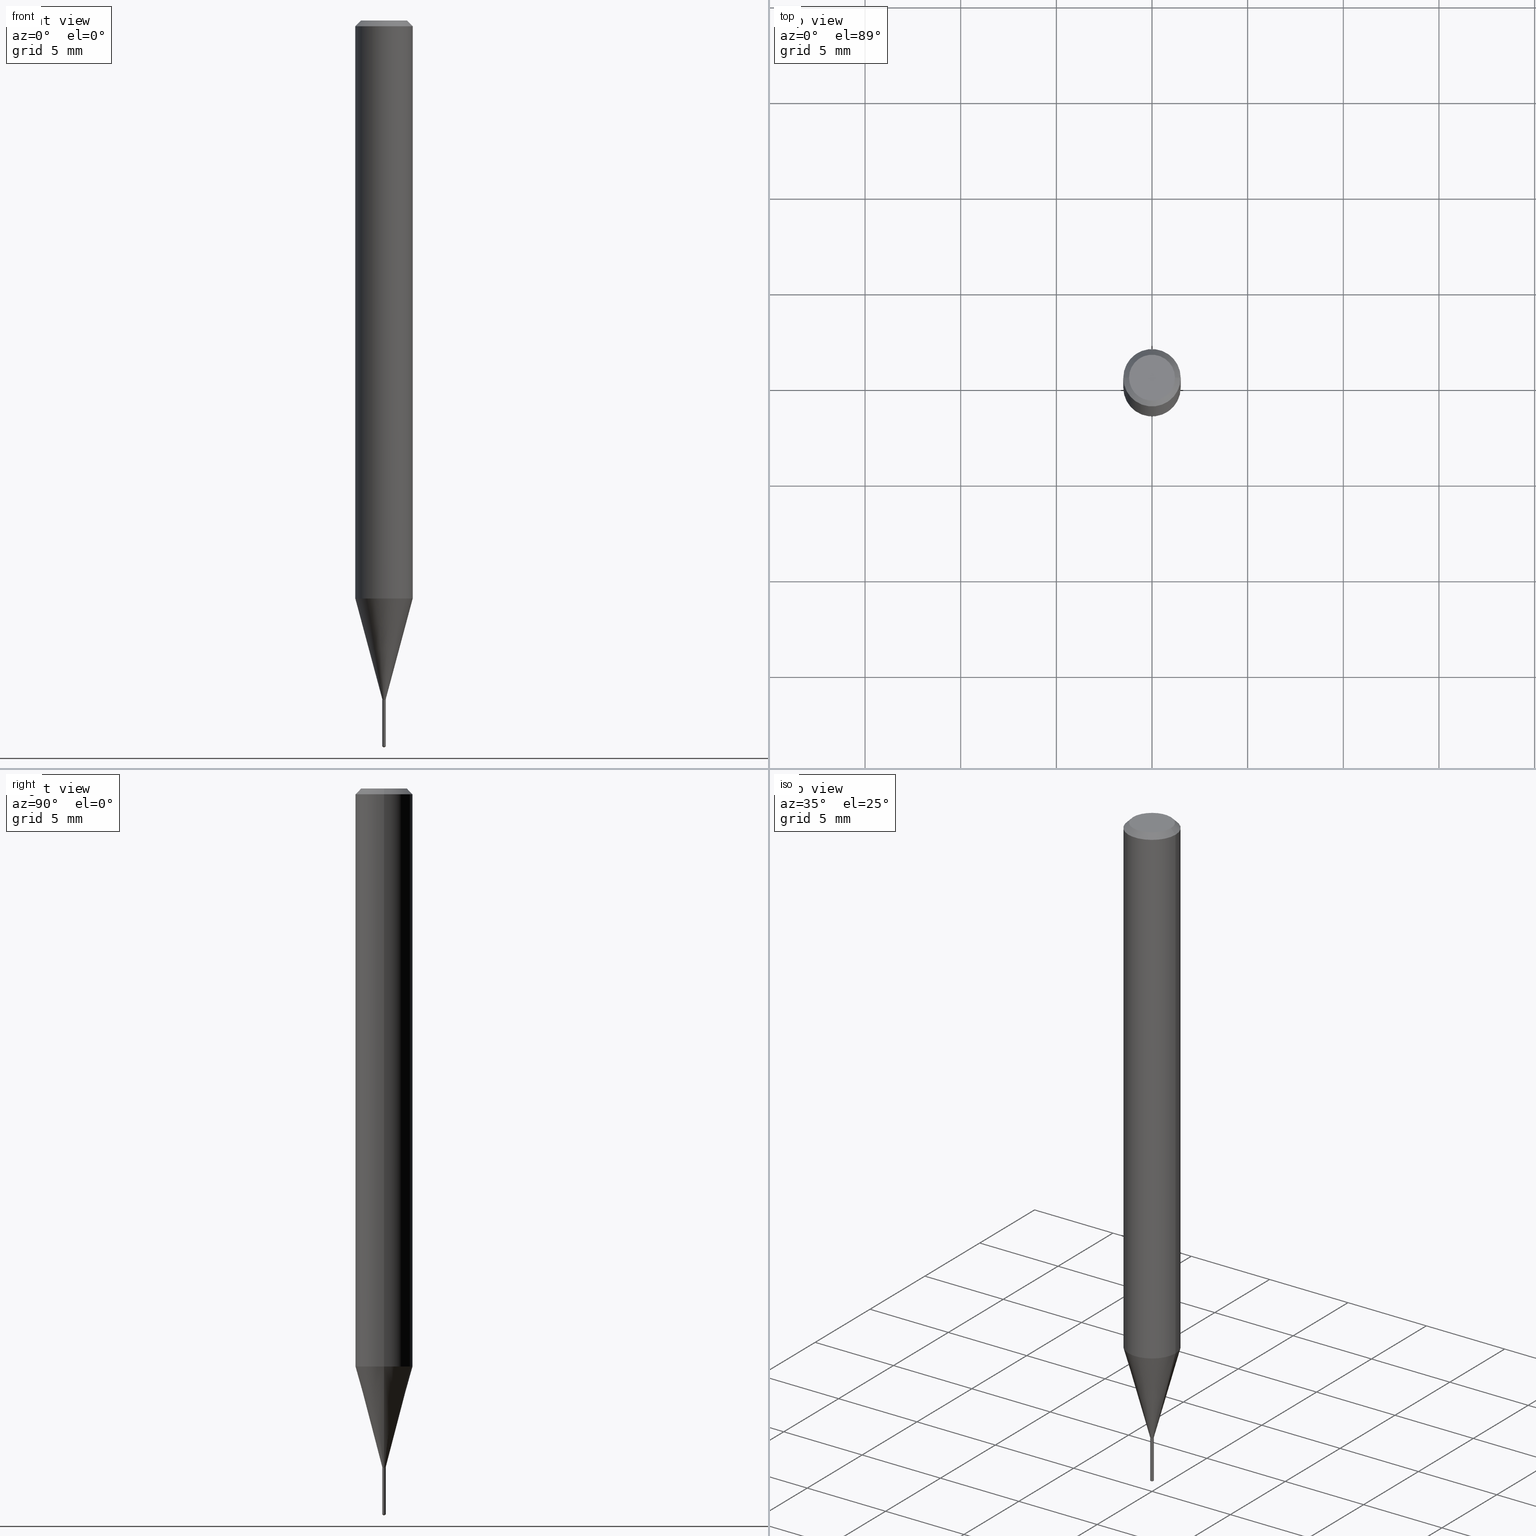
[diagram: canonical four-view strip — front | top / right | iso, engineering-drawing reading convention]
A machine part, canonical four-view strip (front | top / right | iso — engineering-drawing reading convention). The complete STEP part file that produces these views, byte-faithful:
ISO-10303-21;
HEADER;
FILE_DESCRIPTION (( 'STEP AP203' ),
    '1' );
FILE_NAME ('07737.STEP',
    '2024-04-24T01:59:03',
    ( '' ),
    ( '' ),
    'SwSTEP 2.0',
    'SolidWorks 2023',
    '' );
FILE_SCHEMA (( 'CONFIG_CONTROL_DESIGN' ));
ENDSEC;

DATA;
#1 = CARTESIAN_POINT ( 'NONE',  ( -0.05904999999999999832, 3.711095515056362547E-16, -0.01181000000000007218 ) ) ;
#2 = CARTESIAN_POINT ( 'NONE',  ( 3.415341734718161419E-29, -4.876202837828336250E-15, -1.396599999999999842 ) ) ;
#3 = CARTESIAN_POINT ( 'NONE',  ( -0.003549999999999998036, -4.852026015110506796E-15, -1.397199999999999998 ) ) ;
#4 = ORIENTED_EDGE ( 'NONE', *, *, #289, .F. ) ;
#5 = UNCERTAINTY_MEASURE_WITH_UNIT (LENGTH_MEASURE( 1.000000000000000082E-05 ), #40, 'distance_accuracy_value', 'NONE');
#6 = ADVANCED_FACE ( 'NONE', ( #409 ), #281, .T. ) ;
#7 = EDGE_LOOP ( 'NONE', ( #423, #487, #49 ) ) ;
#8 = MECHANICAL_CONTEXT ( 'NONE', #355, 'mechanical' ) ;
#9 = CIRCLE ( 'NONE', #139, 0.003050000000000000194 ) ;
#10 = VERTEX_POINT ( 'NONE', #92 ) ;
#11 = DIMENSIONAL_EXPONENTS ( 1.000000000000000000, 0.000000000000000000, 0.000000000000000000, 0.000000000000000000, 0.000000000000000000, 0.000000000000000000, 0.000000000000000000 ) ;
#12 = ORIENTED_EDGE ( 'NONE', *, *, #252, .F. ) ;
#13 = LOCAL_TIME ( 21, 59, 3.000000000000000000, #345 ) ;
#14 = AXIS2_PLACEMENT_3D ( 'NONE', #380, #110, #74 ) ;
#15 = EDGE_LOOP ( 'NONE', ( #318, #206, #53, #156 ) ) ;
#16 = EDGE_CURVE ( 'NONE', #299, #400, #211, .T. ) ;
#17 = PERSON_AND_ORGANIZATION ( #149, #213 ) ;
#18 = AXIS2_PLACEMENT_3D ( 'NONE', #351, #264, #275 ) ;
#19 = ORIENTED_EDGE ( 'NONE', *, *, #289, .T. ) ;
#20 = DIRECTION ( 'NONE',  ( -2.445468806185136597E-29, 3.491481338843145583E-15, 1.000000000000000000 ) ) ;
#21 = APPROVAL_PERSON_ORGANIZATION ( #279, #405, #228 ) ;
#22 = EDGE_CURVE ( 'NONE', #431, #468, #372, .T. ) ;
#23 = ORIENTED_EDGE ( 'NONE', *, *, #265, .T. ) ;
#24 = ORIENTED_EDGE ( 'NONE', *, *, #67, .F. ) ;
#25 = CARTESIAN_POINT ( 'NONE',  ( 3.418031750404965246E-29, -4.880043467301064347E-15, -1.397699999999999942 ) ) ;
#26 = CIRCLE ( 'NONE', #248, 0.003550000000000000204 ) ;
#27 = DIRECTION ( 'NONE',  ( -2.445468806185136597E-29, 3.491481338843145583E-15, 1.000000000000000000 ) ) ;
#28 = LINE ( 'NONE', #1, #220 ) ;
#29 = DIRECTION ( 'NONE',  ( -2.445428373332437434E-29, 3.491539240989505774E-15, 1.000000000000000000 ) ) ;
#30 = VECTOR ( 'NONE', #402, 39.37007874015748143 ) ;
#31 = CARTESIAN_POINT ( 'NONE',  ( -0.003050000000000000194, -4.858371913860381312E-15, -1.397699999999999942 ) ) ;
#32 = DIRECTION ( 'NONE',  ( 1.000000000000000000, -6.982962677686266711E-15, 0.000000000000000000 ) ) ;
#33 = EDGE_CURVE ( 'NONE', #400, #395, #375, .T. ) ;
#34 = LINE ( 'NONE', #222, #132 ) ;
#35 = ORIENTED_EDGE ( 'NONE', *, *, #365, .T. ) ;
#36 = CARTESIAN_POINT ( 'NONE',  ( 0.05905000000000014404, -4.565360374807322723E-15, -1.189471180179926924 ) ) ;
#37 = DIRECTION ( 'NONE',  ( -6.982962677686265922E-15, -1.000000000000000000, 0.000000000000000000 ) ) ;
#38 = CIRCLE ( 'NONE', #313, 0.003550000000000000204 ) ;
#39 = EDGE_LOOP ( 'NONE', ( #83, #35, #432, #356 ) ) ;
#40 =( CONVERSION_BASED_UNIT ( 'INCH', #260 ) LENGTH_UNIT ( ) NAMED_UNIT ( #11 ) );
#41 = CYLINDRICAL_SURFACE ( 'NONE', #284, 0.003550000000000000204 ) ;
#42 = EDGE_LOOP ( 'NONE', ( #165, #270, #463, #360 ) ) ;
#43 = CALENDAR_DATE ( 2024, 23, 4 ) ;
#44 = PERSON_AND_ORGANIZATION ( #149, #213 ) ;
#45 = AXIS2_PLACEMENT_3D ( 'NONE', #192, #311, #261 ) ;
#46 = LINE ( 'NONE', #205, #347 ) ;
#47 = VERTEX_POINT ( 'NONE', #171 ) ;
#48 = PERSON_AND_ORGANIZATION ( #149, #213 ) ;
#49 = ORIENTED_EDGE ( 'NONE', *, *, #332, .F. ) ;
#50 = SECURITY_CLASSIFICATION ( '', '', #243 ) ;
#51 = ORIENTED_EDGE ( 'NONE', *, *, #136, .F. ) ;
#52 = AXIS2_PLACEMENT_3D ( 'NONE', #25, #336, #99 ) ;
#53 = ORIENTED_EDGE ( 'NONE', *, *, #245, .T. ) ;
#54 = AXIS2_PLACEMENT_3D ( 'NONE', #2, #414, #419 ) ;
#55 = DIRECTION ( 'NONE',  ( 2.445468806185136597E-29, -3.491481338843145583E-15, -1.000000000000000000 ) ) ;
#56 = VERTEX_POINT ( 'NONE', #369 ) ;
#57 = CARTESIAN_POINT ( 'NONE',  ( 2.908814666986231247E-29, -4.153016428689947803E-15, -1.189471180179926924 ) ) ;
#58 = DIRECTION ( 'NONE',  ( -2.445468806185136597E-29, 3.491481338843145583E-15, 1.000000000000000000 ) ) ;
#59 = APPROVAL_ROLE ( '' ) ;
#60 = FACE_OUTER_BOUND ( 'NONE', #337, .T. ) ;
#61 = CIRCLE ( 'NONE', #120, 0.003550000000000000204 ) ;
#62 = CARTESIAN_POINT ( 'NONE',  ( 3.418031750404965246E-29, -4.880043467301064347E-15, -1.397699999999999942 ) ) ;
#63 = DIRECTION ( 'NONE',  ( 1.000000000000000000, -6.982962677686266711E-15, 4.876185090822587894E-29 ) ) ;
#64 = DIRECTION ( 'NONE',  ( -2.445468806185136597E-29, 3.491481338843145583E-15, 1.000000000000000000 ) ) ;
#65 = LINE ( 'NONE', #194, #117 ) ;
#66 = AXIS2_PLACEMENT_3D ( 'NONE', #95, #437, #338 ) ;
#67 = EDGE_CURVE ( 'NONE', #404, #237, #9, .T. ) ;
#68 = CARTESIAN_POINT ( 'NONE',  ( -0.003549999999999997602, -4.852026015110506796E-15, -1.396599999999999842 ) ) ;
#69 = DIRECTION ( 'NONE',  ( 1.000000000000000000, -6.982962677686272233E-15, 0.000000000000000000 ) ) ;
#70 = AXIS2_PLACEMENT_3D ( 'NONE', #346, #343, #309 ) ;
#71 = ORIENTED_EDGE ( 'NONE', *, *, #236, .F. ) ;
#72 = CARTESIAN_POINT ( 'NONE',  ( -0.05905000000000014404, -3.733440943223607521E-15, -1.189471180179926924 ) ) ;
#73 = CONICAL_SURFACE ( 'NONE', #334, 0.003050000000000000194, 0.7853981633975469778 ) ;
#74 = DIRECTION ( 'NONE',  ( -6.982962677686265922E-15, -1.000000000000000000, 0.000000000000000000 ) ) ;
#75 = DIRECTION ( 'NONE',  ( -2.445428373332437434E-29, 3.491539240989505774E-15, 1.000000000000000000 ) ) ;
#76 = ORIENTED_EDGE ( 'NONE', *, *, #238, .T. ) ;
#77 = APPROVAL_STATUS ( 'not_yet_approved' ) ;
#78 = EDGE_LOOP ( 'NONE', ( #212, #393, #4, #458 ) ) ;
#79 = AXIS2_PLACEMENT_3D ( 'NONE', #448, #148, #63 ) ;
#80 = DIRECTION ( 'NONE',  ( 0.000000000000000000, 0.000000000000000000, 1.000000000000000000 ) ) ;
#81 = FACE_OUTER_BOUND ( 'NONE', #239, .T. ) ;
#82 = ORIENTED_EDGE ( 'NONE', *, *, #67, .T. ) ;
#83 = ORIENTED_EDGE ( 'NONE', *, *, #105, .T. ) ;
#84 = DATE_AND_TIME ( #209, #411 ) ;
#85 = APPROVAL ( #188, 'UNSPECIFIED' ) ;
#86 = EDGE_CURVE ( 'NONE', #395, #431, #424, .T. ) ;
#87 = VERTEX_POINT ( 'NONE', #297 ) ;
#88 = EDGE_LOOP ( 'NONE', ( #397, #82, #320, #477 ) ) ;
#89 = AXIS2_PLACEMENT_3D ( 'NONE', #381, #178, #221 ) ;
#90 =( NAMED_UNIT ( * ) SI_UNIT ( $, .STERADIAN. ) SOLID_ANGLE_UNIT ( ) );
#91 = DIRECTION ( 'NONE',  ( 1.000000000000000000, -6.982962677686266711E-15, 4.876176775795936353E-29 ) ) ;
#92 = CARTESIAN_POINT ( 'NONE',  ( 2.522426711952009525E-17, 0.003549999999994785192, -1.493966944802452179 ) ) ;
#93 = FACE_OUTER_BOUND ( 'NONE', #363, .T. ) ;
#94 = CC_DESIGN_APPROVAL ( #454, ( #361 ) ) ;
#95 = CARTESIAN_POINT ( 'NONE',  ( 0.000000000000000000, 0.000000000000000000, 0.000000000000000000 ) ) ;
#96 = EDGE_CURVE ( 'NONE', #325, #168, #295, .T. ) ;
#97 = CYLINDRICAL_SURFACE ( 'NONE', #155, 0.003549999999999997602 ) ;
#98 = AXIS2_PLACEMENT_3D ( 'NONE', #145, #224, #32 ) ;
#99 = DIRECTION ( 'NONE',  ( 1.000000000000000000, -6.982962677686126293E-15, 0.000000000000000000 ) ) ;
#100 = DIRECTION ( 'NONE',  ( 2.438088387897960049E-29, -3.491481338843145188E-15, -1.000000000000000000 ) ) ;
#101 = DIRECTION ( 'NONE',  ( -2.445468806185136597E-29, 3.491481338843145583E-15, 1.000000000000000000 ) ) ;
#102 = LOCAL_TIME ( 21, 59, 3.000000000000000000, #465 ) ;
#103 = DIRECTION ( 'NONE',  ( -0.7071067811866172947, 7.493145998870606596E-15, 0.7071067811864777397 ) ) ;
#104 = DIRECTION ( 'NONE',  ( -2.445468806185136597E-29, 3.491481338843145583E-15, 1.000000000000000000 ) ) ;
#105 = EDGE_CURVE ( 'NONE', #237, #404, #215, .T. ) ;
#106 = FACE_OUTER_BOUND ( 'NONE', #173, .T. ) ;
#107 = CARTESIAN_POINT ( 'NONE',  ( 2.522426711951773483E-17, 0.003549999999995119993, -1.397699999999999942 ) ) ;
#108 = APPLICATION_CONTEXT ( 'configuration controlled 3d designs of mechanical parts and assemblies' ) ;
#109 = CARTESIAN_POINT ( 'NONE',  ( 3.658605389342659504E-29, -5.223691858444399374E-15, -1.496099999999999985 ) ) ;
#110 = DIRECTION ( 'NONE',  ( -2.445428373332437434E-29, 3.491539240989505774E-15, 1.000000000000000000 ) ) ;
#111 = AXIS2_PLACEMENT_3D ( 'NONE', #150, #100, #413 ) ;
#112 = CARTESIAN_POINT ( 'NONE',  ( -2.478951750575206444E-17, -0.003550000000004879981, -1.397699999999999942 ) ) ;
#113 = PERSON_AND_ORGANIZATION ( #149, #213 ) ;
#114 = ORIENTED_EDGE ( 'NONE', *, *, #367, .T. ) ;
#115 = AXIS2_PLACEMENT_3D ( 'NONE', #473, #292, #440 ) ;
#116 = VERTEX_POINT ( 'NONE', #435 ) ;
#117 = VECTOR ( 'NONE', #481, 39.37007874015748143 ) ;
#118 = MANIFOLD_SOLID_BREP ( 'Body-Move/Copy2[1]', #373 ) ;
#119 = FACE_OUTER_BOUND ( 'NONE', #490, .T. ) ;
#120 = AXIS2_PLACEMENT_3D ( 'NONE', #62, #479, #273 ) ;
#121 = ADVANCED_FACE ( 'NONE', ( #60 ), #183, .T. ) ;
#122 = CALENDAR_DATE ( 2024, 23, 4 ) ;
#123 = ORIENTED_EDGE ( 'NONE', *, *, #22, .T. ) ;
#124 = ADVANCED_FACE ( 'NONE', ( #251 ), #133, .T. ) ;
#125 = MANIFOLD_SOLID_BREP ( 'Body-Move/Copy2[2]', #256 ) ;
#126 = ORIENTED_EDGE ( 'NONE', *, *, #96, .F. ) ;
#127 = CIRCLE ( 'NONE', #317, 0.05904999999999999832 ) ;
#128 = ORIENTED_EDGE ( 'NONE', *, *, #141, .F. ) ;
#129 = CARTESIAN_POINT ( 'NONE',  ( 3.418031750404965246E-29, -4.880043467301064347E-15, -1.397699999999999942 ) ) ;
#130 = ADVANCED_FACE ( 'NONE', ( #93 ), #216, .T. ) ;
#131 = DIRECTION ( 'NONE',  ( 1.000000000000000000, -6.982962677686126293E-15, 0.000000000000000000 ) ) ;
#132 = VECTOR ( 'NONE', #489, 39.37007874015748143 ) ;
#133 = CYLINDRICAL_SURFACE ( 'NONE', #66, 0.05905000000000006771 ) ;
#134 = AXIS2_PLACEMENT_3D ( 'NONE', #269, #104, #312 ) ;
#135 = CARTESIAN_POINT ( 'NONE',  ( -0.003549999999999997602, 2.522426711948353956E-17, -1.746221957040490115E-31 ) ) ;
#136 = EDGE_CURVE ( 'NONE', #116, #56, #34, .T. ) ;
#137 = AXIS2_PLACEMENT_3D ( 'NONE', #227, #27, #179 ) ;
#138 = EDGE_LOOP ( 'NONE', ( #285, #335, #249, #244 ) ) ;
#139 = AXIS2_PLACEMENT_3D ( 'NONE', #129, #174, #131 ) ;
#140 = FACE_OUTER_BOUND ( 'NONE', #78, .T. ) ;
#141 = EDGE_CURVE ( 'NONE', #168, #468, #304, .T. ) ;
#142 = ADVANCED_FACE ( 'NONE', ( #277 ), #153, .T. ) ;
#143 = DIRECTION ( 'NONE',  ( 0.2588190451025211836, 1.565188264969622559E-15, 0.9659258262890679791 ) ) ;
#144 = DATE_TIME_ROLE ( 'classification_date' ) ;
#145 = CARTESIAN_POINT ( 'NONE',  ( 2.888098660104664204E-31, -4.123439461173780263E-17, -0.01181000000000007218 ) ) ;
#146 = VECTOR ( 'NONE', #391, 39.37007874015748854 ) ;
#147 = CARTESIAN_POINT ( 'NONE',  ( 3.415341734718161419E-29, -4.876202837828336250E-15, -1.396599999999999842 ) ) ;
#148 = DIRECTION ( 'NONE',  ( -2.445468806185136597E-29, 3.491481338843145583E-15, 1.000000000000000000 ) ) ;
#149 = PERSON ( 'UNSPECIFIED', 'UNSPECIFIED', 'UNSPECIFIED', ('UNSPECIFIED'), ('UNSPECIFIED'), ('UNSPECIFIED') ) ;
#150 = CARTESIAN_POINT ( 'NONE',  ( 4.132873053354867254E-48, -5.900647395337818946E-34, -1.690012582823346072E-19 ) ) ;
#151 = CARTESIAN_POINT ( 'NONE',  ( 3.418031750404965246E-29, -4.880043467301064347E-15, -1.397699999999999942 ) ) ;
#152 = CARTESIAN_POINT ( 'NONE',  ( 0.000000000000000000, 0.000000000000000000, 0.000000000000000000 ) ) ;
#153 = CYLINDRICAL_SURFACE ( 'NONE', #461, 0.003550000000000000204 ) ;
#154 = APPLICATION_PROTOCOL_DEFINITION ( 'international standard', 'config_control_design', 1994, #108 ) ;
#155 = AXIS2_PLACEMENT_3D ( 'NONE', #415, #58, #344 ) ;
#156 = ORIENTED_EDGE ( 'NONE', *, *, #265, .F. ) ;
#157 = DATE_AND_TIME ( #234, #254 ) ;
#158 = ORIENTED_EDGE ( 'NONE', *, *, #333, .F. ) ;
#159 = VECTOR ( 'NONE', #470, 39.37007874015748854 ) ;
#160 = DATE_TIME_ROLE ( 'creation_date' ) ;
#161 = CC_DESIGN_DATE_AND_TIME_ASSIGNMENT ( #84, #160, ( #288 ) ) ;
#162 = CARTESIAN_POINT ( 'NONE',  ( -0.04724000000000000421, 3.504923541997677355E-16, -3.380025165670481712E-19 ) ) ;
#163 = ORIENTED_EDGE ( 'NONE', *, *, #202, .T. ) ;
#164 = CARTESIAN_POINT ( 'NONE',  ( 3.418031750404965246E-29, -4.880043467301064347E-15, -1.397699999999999942 ) ) ;
#165 = ORIENTED_EDGE ( 'NONE', *, *, #238, .F. ) ;
#166 = PERSON_AND_ORGANIZATION ( #149, #213 ) ;
#167 = DIRECTION ( 'NONE',  ( -6.982962677686265922E-15, -1.000000000000000000, 0.000000000000000000 ) ) ;
#168 = VERTEX_POINT ( 'NONE', #450 ) ;
#169 = EDGE_CURVE ( 'NONE', #87, #468, #127, .T. ) ;
#170 = PERSON_AND_ORGANIZATION ( #149, #213 ) ;
#171 = CARTESIAN_POINT ( 'NONE',  ( -2.478951750574971635E-17, -0.003550000000005217385, -1.493966944802452179 ) ) ;
#172 = PRODUCT_DEFINITION_SHAPE ( 'NONE', 'NONE',  #288 ) ;
#173 = EDGE_LOOP ( 'NONE', ( #158, #250, #302 ) ) ;
#174 = DIRECTION ( 'NONE',  ( -2.445468806185136597E-29, 3.491481338843145583E-15, 1.000000000000000000 ) ) ;
#175 = CC_DESIGN_DATE_AND_TIME_ASSIGNMENT ( #428, #144, ( #50 ) ) ;
#176 = CARTESIAN_POINT ( 'NONE',  ( 0.000000000000000000, 0.000000000000000000, 0.000000000000000000 ) ) ;
#177 = DIRECTION ( 'NONE',  ( -1.000000000000000000, 6.982962677686266711E-15, 0.000000000000000000 ) ) ;
#178 = DIRECTION ( 'NONE',  ( -2.438088387897960049E-29, 3.491481338843145188E-15, 1.000000000000000000 ) ) ;
#179 = DIRECTION ( 'NONE',  ( 1.000000000000000000, -6.982962677686266711E-15, 4.876176775795935232E-29 ) ) ;
#180 = CC_DESIGN_PERSON_AND_ORGANIZATION_ASSIGNMENT ( #113, #392, ( #50 ) ) ;
#181 = ADVANCED_FACE ( 'NONE', ( #185 ), #267, .T. ) ;
#182 = PLANE ( 'NONE',  #89 ) ;
#183 = CONICAL_SURFACE ( 'NONE', #287, 0.05904999999999999832, 0.7853981633974452814 ) ;
#184 = DATE_AND_TIME ( #340, #13 ) ;
#185 = FACE_OUTER_BOUND ( 'NONE', #42, .T. ) ;
#186 = CIRCLE ( 'NONE', #14, 0.003550000000000000204 ) ;
#187 = FACE_OUTER_BOUND ( 'NONE', #39, .T. ) ;
#188 = APPROVAL_STATUS ( 'not_yet_approved' ) ;
#189 = FACE_OUTER_BOUND ( 'NONE', #7, .T. ) ;
#190 = CC_DESIGN_SECURITY_CLASSIFICATION ( #50, ( #361 ) ) ;
#191 = CARTESIAN_POINT ( 'NONE',  ( -9.261804570917240977E-28, 1.322385639134920803E-13, 37.87397874015748300 ) ) ;
#192 = CARTESIAN_POINT ( 'NONE',  ( 2.888098660104664204E-31, -4.123439461173780263E-17, -0.01181000000000007218 ) ) ;
#193 = DIRECTION ( 'NONE',  ( -6.982962677686266711E-15, -1.000000000000000000, 3.468864327941578437E-15 ) ) ;
#194 = CARTESIAN_POINT ( 'NONE',  ( -2.478951750575206444E-17, -0.003550000000004879981, -1.397699999999999942 ) ) ;
#195 = EDGE_CURVE ( 'NONE', #468, #87, #476, .T. ) ;
#196 = ORIENTED_EDGE ( 'NONE', *, *, #16, .F. ) ;
#197 = CARTESIAN_POINT ( 'NONE',  ( 3.418031750404965246E-29, -4.880043467301064347E-15, -1.397699999999999942 ) ) ;
#198 = COORDINATED_UNIVERSAL_TIME_OFFSET ( 5, 0, .BEHIND. ) ;
#199 = APPROVAL_PERSON_ORGANIZATION ( #48, #454, #204 ) ;
#200 = EDGE_LOOP ( 'NONE', ( #203, #290, #12, #51 ) ) ;
#201 = ADVANCED_BREP_SHAPE_REPRESENTATION ( '07737', ( #118, #125, #352 ), #403 ) ;
#202 = EDGE_CURVE ( 'NONE', #299, #116, #390, .T. ) ;
#203 = ORIENTED_EDGE ( 'NONE', *, *, #257, .T. ) ;
#204 = APPROVAL_ROLE ( '' ) ;
#205 = CARTESIAN_POINT ( 'NONE',  ( 3.658605389342659504E-29, -5.223691858444398585E-15, -1.496099999999999985 ) ) ;
#206 = ORIENTED_EDGE ( 'NONE', *, *, #374, .T. ) ;
#207 = CARTESIAN_POINT ( 'NONE',  ( 3.653445668638909476E-29, -5.216163282688997407E-15, -1.493966944802452179 ) ) ;
#208 = VERTEX_POINT ( 'NONE', #112 ) ;
#209 = CALENDAR_DATE ( 2024, 23, 4 ) ;
#210 = EDGE_LOOP ( 'NONE', ( #196, #163, #294, #71 ) ) ;
#211 = LINE ( 'NONE', #135, #30 ) ;
#212 = ORIENTED_EDGE ( 'NONE', *, *, #252, .T. ) ;
#213 = ORGANIZATION ( 'UNSPECIFIED', 'UNSPECIFIED', '' ) ;
#214 = DIRECTION ( 'NONE',  ( -2.445468806185136597E-29, 3.491481338843145583E-15, 1.000000000000000000 ) ) ;
#215 = CIRCLE ( 'NONE', #430, 0.003050000000000000194 ) ;
#216 = CYLINDRICAL_SURFACE ( 'NONE', #329, 0.05905000000000006771 ) ;
#217 = CARTESIAN_POINT ( 'NONE',  ( 0.05904999999999999832, -4.535783407291118600E-16, -0.01181000000000007218 ) ) ;
#218 = FACE_OUTER_BOUND ( 'NONE', #200, .T. ) ;
#219 = ADVANCED_FACE ( 'NONE', ( #140 ), #482, .T. ) ;
#220 = VECTOR ( 'NONE', #301, 39.37007874015748143 ) ;
#221 = DIRECTION ( 'NONE',  ( 1.000000000000000000, -6.982962677686265922E-15, 4.876176775795935793E-29 ) ) ;
#222 = CARTESIAN_POINT ( 'NONE',  ( 0.003549999999999997602, -2.478951750578622890E-17, 1.731042755407555784E-31 ) ) ;
#223 = CARTESIAN_POINT ( 'NONE',  ( 0.003050000000000000194, -4.901341503468007479E-15, -1.397699999999999942 ) ) ;
#224 = DIRECTION ( 'NONE',  ( -2.445468806185136597E-29, 3.491481338843145583E-15, 1.000000000000000000 ) ) ;
#225 = CIRCLE ( 'NONE', #134, 0.003549999999999997602 ) ;
#226 = DIRECTION ( 'NONE',  ( -6.982962677686265922E-15, -1.000000000000000000, 0.000000000000000000 ) ) ;
#227 = CARTESIAN_POINT ( 'NONE',  ( 0.000000000000000000, 0.000000000000000000, 0.000000000000000000 ) ) ;
#228 = APPROVAL_ROLE ( '' ) ;
#229 = CC_DESIGN_PERSON_AND_ORGANIZATION_ASSIGNMENT ( #166, #396, ( #288 ) ) ;
#230 = EDGE_CURVE ( 'NONE', #10, #427, #486, .T. ) ;
#231 = FACE_OUTER_BOUND ( 'NONE', #210, .T. ) ;
#232 = CYLINDRICAL_SURFACE ( 'NONE', #137, 0.003549999999999997602 ) ;
#233 = CARTESIAN_POINT ( 'NONE',  ( 3.658719406443666740E-29, -5.223529998784463854E-15, -1.496099999999999985 ) ) ;
#234 = CALENDAR_DATE ( 2024, 23, 4 ) ;
#235 = PLANE ( 'NONE',  #399 ) ;
#236 = EDGE_CURVE ( 'NONE', #400, #56, #296, .T. ) ;
#237 = VERTEX_POINT ( 'NONE', #388 ) ;
#238 = EDGE_CURVE ( 'NONE', #168, #325, #464, .T. ) ;
#239 = EDGE_LOOP ( 'NONE', ( #286, #23 ) ) ;
#240 =( NAMED_UNIT ( * ) PLANE_ANGLE_UNIT ( ) SI_UNIT ( $, .RADIAN. ) );
#241 = EDGE_LOOP ( 'NONE', ( #283, #278, #123, #282 ) ) ;
#242 = AXIS2_PLACEMENT_3D ( 'NONE', #57, #214, #434 ) ;
#243 = SECURITY_CLASSIFICATION_LEVEL ( 'unclassified' ) ;
#244 = ORIENTED_EDGE ( 'NONE', *, *, #86, .F. ) ;
#245 = EDGE_CURVE ( 'NONE', #47, #208, #65, .T. ) ;
#246 = ADVANCED_FACE ( 'NONE', ( #189 ), #298, .T. ) ;
#247 = LINE ( 'NONE', #305, #447 ) ;
#248 = AXIS2_PLACEMENT_3D ( 'NONE', #488, #263, #226 ) ;
#249 = ORIENTED_EDGE ( 'NONE', *, *, #359, .T. ) ;
#250 = ORIENTED_EDGE ( 'NONE', *, *, #326, .T. ) ;
#251 = FACE_OUTER_BOUND ( 'NONE', #241, .T. ) ;
#252 = EDGE_CURVE ( 'NONE', #56, #400, #225, .T. ) ;
#253 = CARTESIAN_POINT ( 'NONE',  ( 2.888098660104664204E-31, -4.123439461173780263E-17, -0.01181000000000007218 ) ) ;
#254 = LOCAL_TIME ( 21, 59, 3.000000000000000000, #385 ) ;
#255 = DIRECTION ( 'NONE',  ( -2.445468806185136877E-29, 3.491481338843145188E-15, 1.000000000000000000 ) ) ;
#256 = CLOSED_SHELL ( 'NONE', ( #474, #181, #130, #219, #293, #406, #421, #124, #121, #368, #469, #6 ) ) ;
#257 = EDGE_CURVE ( 'NONE', #116, #299, #417, .T. ) ;
#258 = LINE ( 'NONE', #444, #370 ) ;
#259 = CARTESIAN_POINT ( 'NONE',  ( 3.418031750404965246E-29, -4.880043467301064347E-15, -1.397699999999999942 ) ) ;
#260 = LENGTH_MEASURE_WITH_UNIT ( LENGTH_MEASURE( 0.02539999999999999897 ), #449 );
#261 = DIRECTION ( 'NONE',  ( -1.000000000000000000, 6.982962677686266711E-15, 0.000000000000000000 ) ) ;
#262 = VECTOR ( 'NONE', #103, 39.37007874015748143 ) ;
#263 = DIRECTION ( 'NONE',  ( -2.445428373332437434E-29, 3.491539240989505774E-15, 1.000000000000000000 ) ) ;
#264 = DIRECTION ( 'NONE',  ( -2.445468806185136597E-29, 3.491481338843145583E-15, 1.000000000000000000 ) ) ;
#265 = EDGE_CURVE ( 'NONE', #427, #208, #186, .T. ) ;
#266 = FACE_OUTER_BOUND ( 'NONE', #398, .T. ) ;
#267 = CONICAL_SURFACE ( 'NONE', #45, 0.05904999999999999832, 0.7853981633974452814 ) ;
#268 = PRODUCT ( '07737', '07737', '', ( #8 ) ) ;
#269 = CARTESIAN_POINT ( 'NONE',  ( 3.415341734718161419E-29, -4.876202837828336250E-15, -1.396599999999999842 ) ) ;
#270 = ORIENTED_EDGE ( 'NONE', *, *, #141, .T. ) ;
#271 = CC_DESIGN_PERSON_AND_ORGANIZATION_ASSIGNMENT ( #17, #426, ( #361 ) ) ;
#272 = AXIS2_PLACEMENT_3D ( 'NONE', #306, #416, #453 ) ;
#273 = DIRECTION ( 'NONE',  ( -6.982962677686265922E-15, -1.000000000000000000, 0.000000000000000000 ) ) ;
#274 = APPROVAL_DATE_TIME ( #184, #85 ) ;
#275 = DIRECTION ( 'NONE',  ( 1.000000000000000000, -6.982962677686295898E-15, 0.000000000000000000 ) ) ;
#276 = AXIS2_PLACEMENT_3D ( 'NONE', #147, #64, #383 ) ;
#277 = FACE_OUTER_BOUND ( 'NONE', #15, .T. ) ;
#278 = ORIENTED_EDGE ( 'NONE', *, *, #86, .T. ) ;
#279 = PERSON_AND_ORGANIZATION ( #149, #213 ) ;
#280 = CC_DESIGN_PERSON_AND_ORGANIZATION_ASSIGNMENT ( #170, #471, ( #361 ) ) ;
#281 = CONICAL_SURFACE ( 'NONE', #52, 0.003050000000000000194, 0.7853981633975469778 ) ;
#282 = ORIENTED_EDGE ( 'NONE', *, *, #169, .F. ) ;
#283 = ORIENTED_EDGE ( 'NONE', *, *, #455, .F. ) ;
#284 = AXIS2_PLACEMENT_3D ( 'NONE', #164, #75, #462 ) ;
#285 = ORIENTED_EDGE ( 'NONE', *, *, #33, .F. ) ;
#286 = ORIENTED_EDGE ( 'NONE', *, *, #443, .T. ) ;
#287 = AXIS2_PLACEMENT_3D ( 'NONE', #253, #55, #177 ) ;
#288 = PRODUCT_DEFINITION ( 'UNKNOWN', '', #361, #436 ) ;
#289 = EDGE_CURVE ( 'NONE', #431, #395, #300, .T. ) ;
#290 = ORIENTED_EDGE ( 'NONE', *, *, #16, .T. ) ;
#291 = CONICAL_SURFACE ( 'NONE', #276, 0.003549999999999997602, 0.2617993877991499074 ) ;
#292 = DIRECTION ( 'NONE',  ( -2.445468806185136597E-29, 3.491481338843145583E-15, 1.000000000000000000 ) ) ;
#293 = ADVANCED_FACE ( 'NONE', ( #218 ), #232, .T. ) ;
#294 = ORIENTED_EDGE ( 'NONE', *, *, #136, .T. ) ;
#295 = CIRCLE ( 'NONE', #115, 0.04724000000000000421 ) ;
#296 = CIRCLE ( 'NONE', #54, 0.003549999999999997602 ) ;
#297 = CARTESIAN_POINT ( 'NONE',  ( -0.05904999999999999832, -1.677549926184502089E-15, -0.01181000000000007218 ) ) ;
#298 = CONICAL_SURFACE ( 'NONE', #70, 65.52281426576873002, 1.029744258676656532 ) ;
#299 = VERTEX_POINT ( 'NONE', #3 ) ;
#300 = CIRCLE ( 'NONE', #420, 0.05905000000000014404 ) ;
#301 = DIRECTION ( 'NONE',  ( -0.7071067811865453523, 2.468850131082234184E-15, -0.7071067811865496822 ) ) ;
#302 = ORIENTED_EDGE ( 'NONE', *, *, #374, .F. ) ;
#303 = ADVANCED_FACE ( 'NONE', ( #81 ), #235, .F. ) ;
#304 = LINE ( 'NONE', #456, #349 ) ;
#305 = CARTESIAN_POINT ( 'NONE',  ( 0.003549999999999997602, -4.900992355334122390E-15, -1.396599999999999842 ) ) ;
#306 = CARTESIAN_POINT ( 'NONE',  ( 3.416809016001873005E-29, -4.878297726631642843E-15, -1.397199999999999998 ) ) ;
#307 = CC_DESIGN_APPROVAL ( #85, ( #50 ) ) ;
#308 = DIRECTION ( 'NONE',  ( 1.000000000000000000, -6.982962677686126293E-15, 0.000000000000000000 ) ) ;
#309 = DIRECTION ( 'NONE',  ( -6.982962677686266711E-15, -1.000000000000000000, 3.468864327941578437E-15 ) ) ;
#310 = DIRECTION ( 'NONE',  ( -2.445428373332437434E-29, 3.491539240989505774E-15, 1.000000000000000000 ) ) ;
#311 = DIRECTION ( 'NONE',  ( 2.445468806185136597E-29, -3.491481338843145583E-15, -1.000000000000000000 ) ) ;
#312 = DIRECTION ( 'NONE',  ( 1.000000000000000000, -6.982962677686296687E-15, 0.000000000000000000 ) ) ;
#313 = AXIS2_PLACEMENT_3D ( 'NONE', #207, #362, #167 ) ;
#314 = ORIENTED_EDGE ( 'NONE', *, *, #332, .T. ) ;
#315 = COORDINATED_UNIVERSAL_TIME_OFFSET ( 5, 0, .BEHIND. ) ;
#316 = APPROVAL_DATE_TIME ( #157, #405 ) ;
#317 = AXIS2_PLACEMENT_3D ( 'NONE', #378, #101, #412 ) ;
#318 = ORIENTED_EDGE ( 'NONE', *, *, #230, .F. ) ;
#319 = APPROVAL_STATUS ( 'not_yet_approved' ) ;
#320 = ORIENTED_EDGE ( 'NONE', *, *, #439, .T. ) ;
#321 = DATE_AND_TIME ( #43, #485 ) ;
#322 = CC_DESIGN_APPROVAL ( #405, ( #288 ) ) ;
#323 = DIRECTION ( 'NONE',  ( -5.985567269335949957E-15, -0.8571673007021116675, 0.5150380749100553768 ) ) ;
#324 = ADVANCED_FACE ( 'NONE', ( #119 ), #41, .T. ) ;
#325 = VERTEX_POINT ( 'NONE', #162 ) ;
#326 = EDGE_CURVE ( 'NONE', #460, #47, #46, .T. ) ;
#327 = LINE ( 'NONE', #233, #146 ) ;
#328 = ORIENTED_EDGE ( 'NONE', *, *, #230, .T. ) ;
#329 = AXIS2_PLACEMENT_3D ( 'NONE', #176, #331, #91 ) ;
#330 = AXIS2_PLACEMENT_3D ( 'NONE', #341, #384, #382 ) ;
#331 = DIRECTION ( 'NONE',  ( -2.445468806185136597E-29, 3.491481338843145583E-15, 1.000000000000000000 ) ) ;
#332 = EDGE_CURVE ( 'NONE', #47, #10, #38, .T. ) ;
#333 = EDGE_CURVE ( 'NONE', #460, #10, #327, .T. ) ;
#334 = AXIS2_PLACEMENT_3D ( 'NONE', #379, #484, #308 ) ;
#335 = ORIENTED_EDGE ( 'NONE', *, *, #236, .T. ) ;
#336 = DIRECTION ( 'NONE',  ( -2.445468806185136597E-29, 3.491481338843145583E-15, 1.000000000000000000 ) ) ;
#337 = EDGE_LOOP ( 'NONE', ( #128, #126, #114, #425 ) ) ;
#338 = DIRECTION ( 'NONE',  ( 1.000000000000000000, -6.982962677686266711E-15, 4.876176775795936353E-29 ) ) ;
#339 = DIRECTION ( 'NONE',  ( -2.445468806185136877E-29, 3.491481338843145188E-15, 1.000000000000000000 ) ) ;
#340 = CALENDAR_DATE ( 2024, 23, 4 ) ;
#341 = CARTESIAN_POINT ( 'NONE',  ( 3.415341734718161419E-29, -4.876202837828336250E-15, -1.396599999999999842 ) ) ;
#342 = VECTOR ( 'NONE', #255, 39.37007874015748143 ) ;
#343 = DIRECTION ( 'NONE',  ( -2.445428373332437434E-29, 3.491539240989505774E-15, 1.000000000000000000 ) ) ;
#344 = DIRECTION ( 'NONE',  ( 1.000000000000000000, -6.982962677686266711E-15, 4.876176775795935232E-29 ) ) ;
#345 = COORDINATED_UNIVERSAL_TIME_OFFSET ( 5, 0, .BEHIND. ) ;
#346 = CARTESIAN_POINT ( 'NONE',  ( -9.261804570917240977E-28, 1.322385639134920803E-13, 37.87397874015748300 ) ) ;
#347 = VECTOR ( 'NONE', #323, 39.37007874015748143 ) ;
#348 = DIRECTION ( 'NONE',  ( -2.445428373332437434E-29, 3.491539240989505380E-15, 1.000000000000000000 ) ) ;
#349 = VECTOR ( 'NONE', #445, 39.37007874015748143 ) ;
#350 = LINE ( 'NONE', #31, #262 ) ;
#351 = CARTESIAN_POINT ( 'NONE',  ( 3.416809016001873005E-29, -4.878297726631642843E-15, -1.397199999999999998 ) ) ;
#352 = AXIS2_PLACEMENT_3D ( 'NONE', #152, #80, #459 ) ;
#353 = DIRECTION ( 'NONE',  ( 6.982962677686265922E-15, 1.000000000000000000, -3.491539240989505380E-15 ) ) ;
#354 = ORIENTED_EDGE ( 'NONE', *, *, #245, .F. ) ;
#355 = APPLICATION_CONTEXT ( 'configuration controlled 3d designs of mechanical parts and assemblies' ) ;
#356 = ORIENTED_EDGE ( 'NONE', *, *, #439, .F. ) ;
#357 = PERSON_AND_ORGANIZATION_ROLE ( 'design_owner' ) ;
#358 = CC_DESIGN_PERSON_AND_ORGANIZATION_ASSIGNMENT ( #44, #357, ( #268 ) ) ;
#359 = EDGE_CURVE ( 'NONE', #56, #431, #247, .T. ) ;
#360 = ORIENTED_EDGE ( 'NONE', *, *, #367, .F. ) ;
#361 = PRODUCT_DEFINITION_FORMATION_WITH_SPECIFIED_SOURCE ( 'ANY', '', #268, .NOT_KNOWN. ) ;
#362 = DIRECTION ( 'NONE',  ( -2.445428373332437434E-29, 3.491539240989505774E-15, 1.000000000000000000 ) ) ;
#363 = EDGE_LOOP ( 'NONE', ( #19, #401, #366, #429 ) ) ;
#364 = APPROVAL_DATE_TIME ( #321, #454 ) ;
#365 = EDGE_CURVE ( 'NONE', #404, #299, #350, .T. ) ;
#366 = ORIENTED_EDGE ( 'NONE', *, *, #195, .F. ) ;
#367 = EDGE_CURVE ( 'NONE', #325, #87, #28, .T. ) ;
#368 = ADVANCED_FACE ( 'NONE', ( #266 ), #408, .F. ) ;
#369 = CARTESIAN_POINT ( 'NONE',  ( 0.003549999999999997602, -4.900992355334122390E-15, -1.396599999999999842 ) ) ;
#370 = VECTOR ( 'NONE', #339, 39.37007874015748143 ) ;
#371 = DIRECTION ( 'NONE',  ( 1.000000000000000000, -6.982962677686126293E-15, 0.000000000000000000 ) ) ;
#372 = LINE ( 'NONE', #442, #342 ) ;
#373 = CLOSED_SHELL ( 'NONE', ( #324, #246, #438, #142, #303 ) ) ;
#374 = EDGE_CURVE ( 'NONE', #10, #47, #26, .T. ) ;
#375 = LINE ( 'NONE', #407, #159 ) ;
#376 = FACE_OUTER_BOUND ( 'NONE', #467, .T. ) ;
#377 = AXIS2_PLACEMENT_3D ( 'NONE', #191, #310, #193 ) ;
#378 = CARTESIAN_POINT ( 'NONE',  ( 2.888098660104664204E-31, -4.123439461173780263E-17, -0.01181000000000007218 ) ) ;
#379 = CARTESIAN_POINT ( 'NONE',  ( 3.418031750404965246E-29, -4.880043467301064347E-15, -1.397699999999999942 ) ) ;
#380 = CARTESIAN_POINT ( 'NONE',  ( 3.418031750404965246E-29, -4.880043467301064347E-15, -1.397699999999999942 ) ) ;
#381 = CARTESIAN_POINT ( 'NONE',  ( 3.418031750404965246E-29, -4.880043467301064347E-15, -1.397699999999999942 ) ) ;
#382 = DIRECTION ( 'NONE',  ( 1.000000000000000000, -6.982962677686296687E-15, 0.000000000000000000 ) ) ;
#383 = DIRECTION ( 'NONE',  ( 1.000000000000000000, -6.982962677686296687E-15, 0.000000000000000000 ) ) ;
#384 = DIRECTION ( 'NONE',  ( -2.445468806185136597E-29, 3.491481338843145583E-15, 1.000000000000000000 ) ) ;
#385 = COORDINATED_UNIVERSAL_TIME_OFFSET ( 5, 0, .BEHIND. ) ;
#386 = CARTESIAN_POINT ( 'NONE',  ( 2.522426711952010449E-17, 0.003549999999995119993, -1.397699999999999942 ) ) ;
#387 = PRODUCT_RELATED_PRODUCT_CATEGORY ( 'detail', '', ( #268 ) ) ;
#388 = CARTESIAN_POINT ( 'NONE',  ( 0.003050000000000000194, -4.901341503468007479E-15, -1.397699999999999942 ) ) ;
#389 = APPLICATION_PROTOCOL_DEFINITION ( 'international standard', 'config_control_design', 1994, #355 ) ;
#390 = CIRCLE ( 'NONE', #18, 0.003549999999999998036 ) ;
#391 = DIRECTION ( 'NONE',  ( 6.090539988449787113E-15, 0.8571673007021152202, 0.5150380749100493816 ) ) ;
#392 = PERSON_AND_ORGANIZATION_ROLE ( 'classification_officer' ) ;
#393 = ORIENTED_EDGE ( 'NONE', *, *, #33, .T. ) ;
#394 = DIRECTION ( 'NONE',  ( 2.445428373332437434E-29, -3.491539240989505380E-15, -1.000000000000000000 ) ) ;
#395 = VERTEX_POINT ( 'NONE', #72 ) ;
#396 = PERSON_AND_ORGANIZATION_ROLE ( 'creator' ) ;
#397 = ORIENTED_EDGE ( 'NONE', *, *, #365, .F. ) ;
#398 = EDGE_LOOP ( 'NONE', ( #466, #76 ) ) ;
#399 = AXIS2_PLACEMENT_3D ( 'NONE', #197, #394, #353 ) ;
#400 = VERTEX_POINT ( 'NONE', #68 ) ;
#401 = ORIENTED_EDGE ( 'NONE', *, *, #455, .T. ) ;
#402 = DIRECTION ( 'NONE',  ( -2.445468806185136877E-29, 3.491481338843145188E-15, 1.000000000000000000 ) ) ;
#403 =( GEOMETRIC_REPRESENTATION_CONTEXT ( 3 ) GLOBAL_UNCERTAINTY_ASSIGNED_CONTEXT ( ( #5 ) ) GLOBAL_UNIT_ASSIGNED_CONTEXT ( ( #40, #240, #90 ) ) REPRESENTATION_CONTEXT ( 'NONE', 'WORKASPACE' ) );
#404 = VERTEX_POINT ( 'NONE', #441 ) ;
#405 = APPROVAL ( #77, 'UNSPECIFIED' ) ;
#406 = ADVANCED_FACE ( 'NONE', ( #231 ), #97, .T. ) ;
#407 = CARTESIAN_POINT ( 'NONE',  ( -0.003549999999999997602, -4.850978570708852316E-15, -1.396599999999999842 ) ) ;
#408 = PLANE ( 'NONE',  #111 ) ;
#409 = FACE_OUTER_BOUND ( 'NONE', #88, .T. ) ;
#410 = LINE ( 'NONE', #223, #433 ) ;
#411 = LOCAL_TIME ( 21, 59, 3.000000000000000000, #198 ) ;
#412 = DIRECTION ( 'NONE',  ( 1.000000000000000000, -6.982962677686266711E-15, 0.000000000000000000 ) ) ;
#413 = DIRECTION ( 'NONE',  ( -1.000000000000000000, 6.982962677686265922E-15, -4.876176775795935793E-29 ) ) ;
#414 = DIRECTION ( 'NONE',  ( -2.445468806185136597E-29, 3.491481338843145583E-15, 1.000000000000000000 ) ) ;
#415 = CARTESIAN_POINT ( 'NONE',  ( 0.000000000000000000, 0.000000000000000000, 0.000000000000000000 ) ) ;
#416 = DIRECTION ( 'NONE',  ( -2.445468806185136597E-29, 3.491481338843145583E-15, 1.000000000000000000 ) ) ;
#417 = CIRCLE ( 'NONE', #272, 0.003549999999999998036 ) ;
#418 = PERSON_AND_ORGANIZATION ( #149, #213 ) ;
#419 = DIRECTION ( 'NONE',  ( 1.000000000000000000, -6.982962677686296687E-15, 0.000000000000000000 ) ) ;
#420 = AXIS2_PLACEMENT_3D ( 'NONE', #483, #422, #69 ) ;
#421 = ADVANCED_FACE ( 'NONE', ( #446 ), #291, .T. ) ;
#422 = DIRECTION ( 'NONE',  ( -2.445468806185136597E-29, 3.491481338843145583E-15, 1.000000000000000000 ) ) ;
#423 = ORIENTED_EDGE ( 'NONE', *, *, #326, .F. ) ;
#424 = CIRCLE ( 'NONE', #242, 0.05905000000000014404 ) ;
#425 = ORIENTED_EDGE ( 'NONE', *, *, #169, .T. ) ;
#426 = PERSON_AND_ORGANIZATION_ROLE ( 'creator' ) ;
#427 = VERTEX_POINT ( 'NONE', #386 ) ;
#428 = DATE_AND_TIME ( #122, #102 ) ;
#429 = ORIENTED_EDGE ( 'NONE', *, *, #22, .F. ) ;
#430 = AXIS2_PLACEMENT_3D ( 'NONE', #259, #20, #371 ) ;
#431 = VERTEX_POINT ( 'NONE', #36 ) ;
#432 = ORIENTED_EDGE ( 'NONE', *, *, #257, .F. ) ;
#433 = VECTOR ( 'NONE', #452, 39.37007874015748143 ) ;
#434 = DIRECTION ( 'NONE',  ( 1.000000000000000000, -6.982962677686272233E-15, 0.000000000000000000 ) ) ;
#435 = CARTESIAN_POINT ( 'NONE',  ( 0.003549999999999998036, -4.903087244137429772E-15, -1.397199999999999998 ) ) ;
#436 = DESIGN_CONTEXT ( 'detailed design', #108, 'design' ) ;
#437 = DIRECTION ( 'NONE',  ( -2.445468806185136597E-29, 3.491481338843145583E-15, 1.000000000000000000 ) ) ;
#438 = ADVANCED_FACE ( 'NONE', ( #106 ), #457, .T. ) ;
#439 = EDGE_CURVE ( 'NONE', #237, #116, #410, .T. ) ;
#440 = DIRECTION ( 'NONE',  ( 1.000000000000000000, -6.982962677686266711E-15, 4.876185090822587894E-29 ) ) ;
#441 = CARTESIAN_POINT ( 'NONE',  ( -0.003050000000000000194, -4.855722686686270899E-15, -1.397699999999999942 ) ) ;
#442 = CARTESIAN_POINT ( 'NONE',  ( 0.05905000000000006771, -4.123439461173745257E-16, 2.879382386107503723E-30 ) ) ;
#443 = EDGE_CURVE ( 'NONE', #208, #427, #61, .T. ) ;
#444 = CARTESIAN_POINT ( 'NONE',  ( -0.05905000000000006771, 4.195754854663396409E-16, -2.904631170795525045E-30 ) ) ;
#445 = DIRECTION ( 'NONE',  ( 0.7071067811865453523, -7.319954787623248157E-15, -0.7071067811865496822 ) ) ;
#446 = FACE_OUTER_BOUND ( 'NONE', #138, .T. ) ;
#447 = VECTOR ( 'NONE', #143, 39.37007874015748854 ) ;
#448 = CARTESIAN_POINT ( 'NONE',  ( 8.265746106709734507E-48, -1.180129479067563789E-33, -3.380025165646692144E-19 ) ) ;
#449 =( LENGTH_UNIT ( ) NAMED_UNIT ( * ) SI_UNIT ( $, .METRE. ) );
#450 = CARTESIAN_POINT ( 'NONE',  ( 0.04724000000000000421, -3.852183633974369345E-16, -3.380025165621689721E-19 ) ) ;
#451 = VECTOR ( 'NONE', #348, 39.37007874015748143 ) ;
#452 = DIRECTION ( 'NONE',  ( 0.7071067811866172947, -2.468850131082987546E-15, 0.7071067811864777397 ) ) ;
#453 = DIRECTION ( 'NONE',  ( 1.000000000000000000, -6.982962677686295898E-15, 0.000000000000000000 ) ) ;
#454 = APPROVAL ( #319, 'UNSPECIFIED' ) ;
#455 = EDGE_CURVE ( 'NONE', #395, #87, #258, .T. ) ;
#456 = CARTESIAN_POINT ( 'NONE',  ( 0.05904999999999999832, -4.463468013801466955E-16, -0.01181000000000007218 ) ) ;
#457 = CONICAL_SURFACE ( 'NONE', #377, 65.52281426576873002, 1.029744258676656532 ) ;
#458 = ORIENTED_EDGE ( 'NONE', *, *, #359, .F. ) ;
#459 = DIRECTION ( 'NONE',  ( 1.000000000000000000, 0.000000000000000000, 0.000000000000000000 ) ) ;
#460 = VERTEX_POINT ( 'NONE', #109 ) ;
#461 = AXIS2_PLACEMENT_3D ( 'NONE', #151, #29, #37 ) ;
#462 = DIRECTION ( 'NONE',  ( -6.982962677686265922E-15, -1.000000000000000000, 0.000000000000000000 ) ) ;
#463 = ORIENTED_EDGE ( 'NONE', *, *, #195, .T. ) ;
#464 = CIRCLE ( 'NONE', #79, 0.04724000000000000421 ) ;
#465 = COORDINATED_UNIVERSAL_TIME_OFFSET ( 5, 0, .BEHIND. ) ;
#466 = ORIENTED_EDGE ( 'NONE', *, *, #96, .T. ) ;
#467 = EDGE_LOOP ( 'NONE', ( #475, #24 ) ) ;
#468 = VERTEX_POINT ( 'NONE', #217 ) ;
#469 = ADVANCED_FACE ( 'NONE', ( #376 ), #182, .F. ) ;
#470 = DIRECTION ( 'NONE',  ( -0.2588190451025211836, 5.211531920934547886E-15, 0.9659258262890679791 ) ) ;
#471 = PERSON_AND_ORGANIZATION_ROLE ( 'design_supplier' ) ;
#472 = APPROVAL_PERSON_ORGANIZATION ( #418, #85, #59 ) ;
#473 = CARTESIAN_POINT ( 'NONE',  ( 8.265746106709734507E-48, -1.180129479067563789E-33, -3.380025165646692144E-19 ) ) ;
#474 = ADVANCED_FACE ( 'NONE', ( #187 ), #73, .T. ) ;
#475 = ORIENTED_EDGE ( 'NONE', *, *, #105, .F. ) ;
#476 = CIRCLE ( 'NONE', #98, 0.05904999999999999832 ) ;
#477 = ORIENTED_EDGE ( 'NONE', *, *, #202, .F. ) ;
#478 = ORIENTED_EDGE ( 'NONE', *, *, #443, .F. ) ;
#479 = DIRECTION ( 'NONE',  ( -2.445428373332437434E-29, 3.491539240989505774E-15, 1.000000000000000000 ) ) ;
#480 = SHAPE_DEFINITION_REPRESENTATION ( #172, #201 ) ;
#481 = DIRECTION ( 'NONE',  ( -2.445428373332437434E-29, 3.491539240989505380E-15, 1.000000000000000000 ) ) ;
#482 = CONICAL_SURFACE ( 'NONE', #330, 0.003549999999999997602, 0.2617993877991499074 ) ;
#483 = CARTESIAN_POINT ( 'NONE',  ( 2.908814666986231247E-29, -4.153016428689947803E-15, -1.189471180179926924 ) ) ;
#484 = DIRECTION ( 'NONE',  ( -2.445468806185136597E-29, 3.491481338843145583E-15, 1.000000000000000000 ) ) ;
#485 = LOCAL_TIME ( 21, 59, 3.000000000000000000, #315 ) ;
#486 = LINE ( 'NONE', #107, #451 ) ;
#487 = ORIENTED_EDGE ( 'NONE', *, *, #333, .T. ) ;
#488 = CARTESIAN_POINT ( 'NONE',  ( 3.653445668638909476E-29, -5.216163282688997407E-15, -1.493966944802452179 ) ) ;
#489 = DIRECTION ( 'NONE',  ( -2.445468806185136877E-29, 3.491481338843145188E-15, 1.000000000000000000 ) ) ;
#490 = EDGE_LOOP ( 'NONE', ( #314, #328, #478, #354 ) ) ;
ENDSEC;
END-ISO-10303-21;
